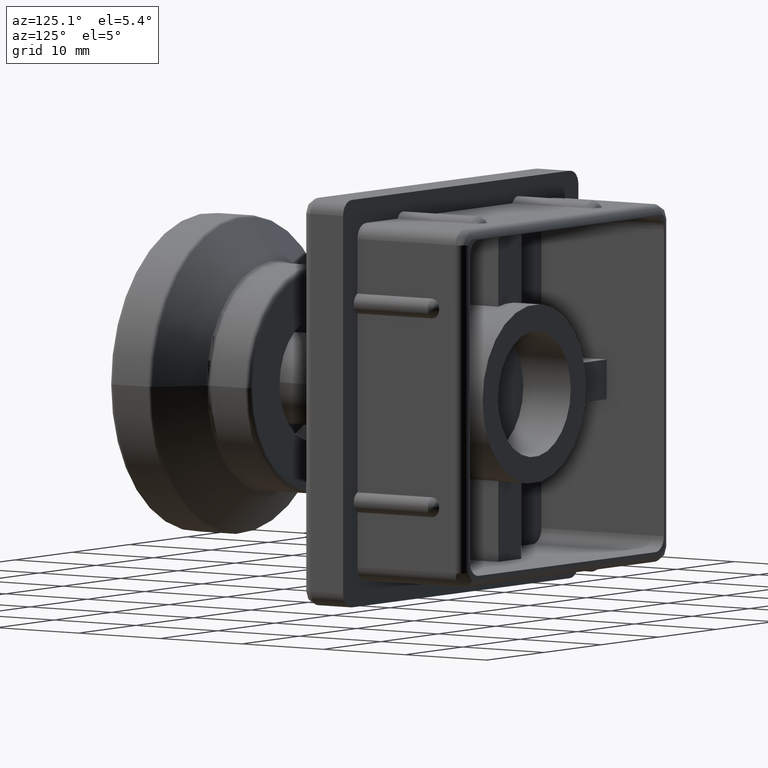
[diagram: clean part render]
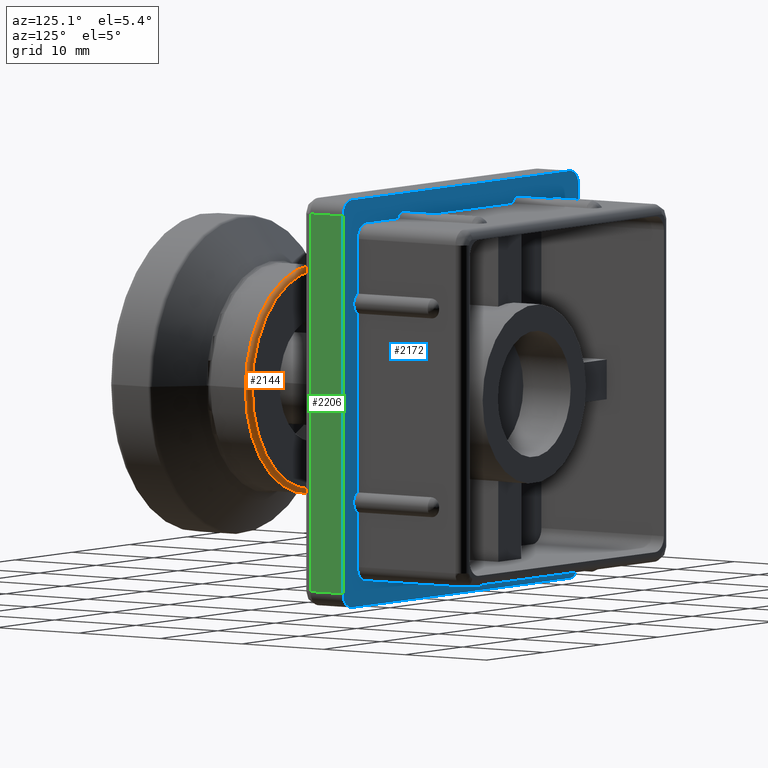
[diagram: same view with three faces highlighted in distinct colors, each labeled with its STEP entity id]
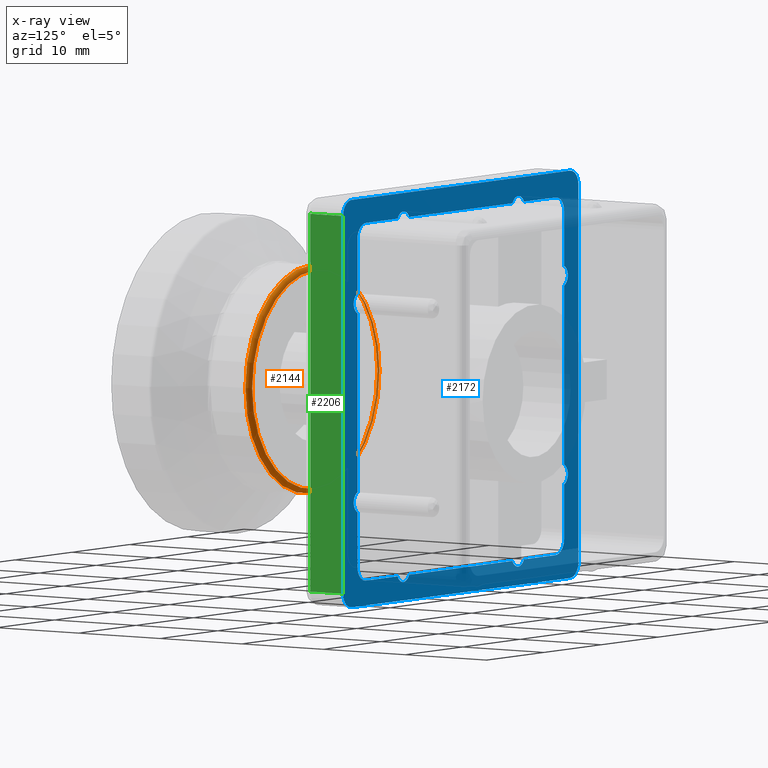
[diagram: x-ray of the same camera — body ghosted, the three highlighted faces saturated]
A machine part, auxiliary view with three faces highlighted in distinct colors.
The next image is the same camera in x-ray (body ghosted, the three faces saturated) — at least one of them is partly hidden behind the body in this view.
Their STEP definitions:

[orange] entity #2144 — the highlighted toroidal blend (fillet) surface has major radius 11 mm and minor (blend) radius 0.5 mm.
#54=FACE_BOUND('',#408,.T.);
#92=CIRCLE('',#2296,11.5);
#93=CIRCLE('',#2298,11.);
#184=TOROIDAL_SURFACE('',#2297,11.,0.5);
#269=FACE_OUTER_BOUND('',#407,.T.);
#407=EDGE_LOOP('',(#1541));
#408=EDGE_LOOP('',(#1542));
#959=VERTEX_POINT('',#3399);
#960=VERTEX_POINT('',#3402);
#1194=EDGE_CURVE('',#959,#959,#92,.T.);
#1195=EDGE_CURVE('',#960,#960,#93,.T.);
#1541=ORIENTED_EDGE('',*,*,#1195,.T.);
#1542=ORIENTED_EDGE('',*,*,#1194,.T.);
#2144=ADVANCED_FACE('',(#269,#54),#184,.T.);
#2296=AXIS2_PLACEMENT_3D('',#3400,#2611,#2612);
#2297=AXIS2_PLACEMENT_3D('',#3401,#2613,#2614);
#2298=AXIS2_PLACEMENT_3D('',#3403,#2615,#2616);
#2611=DIRECTION('center_axis',(-6.34413156928661E-17,1.,0.));
#2612=DIRECTION('ref_axis',(-1.,-6.63720286460691E-17,1.22464679914735E-16));
#2613=DIRECTION('center_axis',(6.34413156928661E-17,-1.,0.));
#2614=DIRECTION('ref_axis',(0.,0.,-1.));
#2615=DIRECTION('center_axis',(6.34413156928661E-17,-1.,0.));
#2616=DIRECTION('ref_axis',(-1.,-6.34413156928661E-17,1.22464679914735E-16));
#3399=CARTESIAN_POINT('',(11.5,13.5,-2.81668763803891E-15));
#3400=CARTESIAN_POINT('Origin',(-8.56457761853692E-16,13.5,0.));
#3401=CARTESIAN_POINT('Origin',(-8.56457761853692E-16,13.5,0.));
#3402=CARTESIAN_POINT('',(11.,14.,0.));
#3403=CARTESIAN_POINT('Origin',(-8.88178419700125E-16,14.,0.));

[blue] entity #2172 — the highlighted planar face has unit normal (-0, 1, -0).
#61=FACE_BOUND('',#443,.T.);
#108=CIRCLE('',#2332,1.09423076923077);
#109=CIRCLE('',#2334,1.09423076923077);
#110=CIRCLE('',#2336,1.5);
#111=CIRCLE('',#2337,1.5);
#112=CIRCLE('',#2338,1.5);
#113=CIRCLE('',#2339,1.5);
#114=CIRCLE('',#2340,1.5);
#115=CIRCLE('',#2341,1.09423076923077);
#116=CIRCLE('',#2342,1.09423076923077);
#117=CIRCLE('',#2343,1.5);
#118=CIRCLE('',#2344,1.09423076923077);
#119=CIRCLE('',#2345,1.09423076923077);
#120=CIRCLE('',#2346,1.5);
#121=CIRCLE('',#2347,1.09423076923077);
#122=CIRCLE('',#2348,1.09423076923077);
#123=CIRCLE('',#2349,1.5);
#207=PLANE('',#2335);
#297=FACE_OUTER_BOUND('',#442,.T.);
#442=EDGE_LOOP('',(#1658,#1659,#1660,#1661,#1662,#1663,#1664,#1665));
#443=EDGE_LOOP('',(#1666,#1667,#1668,#1669,#1670,#1671,#1672,#1673,#1674,
#1675,#1676,#1677,#1678,#1679,#1680,#1681,#1682,#1683,#1684,#1685,#1686,
#1687,#1688,#1689));
#578=LINE('',#4320,#746);
#579=LINE('',#4324,#747);
#580=LINE('',#4328,#748);
#581=LINE('',#4331,#749);
#582=LINE('',#4333,#750);
#583=LINE('',#4337,#751);
#584=LINE('',#4341,#752);
#585=LINE('',#4345,#753);
#586=LINE('',#4349,#754);
#587=LINE('',#4353,#755);
#588=LINE('',#4357,#756);
#589=LINE('',#4361,#757);
#590=LINE('',#4365,#758);
#591=LINE('',#4369,#759);
#592=LINE('',#4372,#760);
#593=LINE('',#4373,#761);
#746=VECTOR('',#2705,38.);
#747=VECTOR('',#2708,38.);
#748=VECTOR('',#2711,38.);
#749=VECTOR('',#2714,38.);
#750=VECTOR('',#2715,5.5);
#751=VECTOR('',#2718,5.5);
#752=VECTOR('',#2721,18.);
#753=VECTOR('',#2724,5.5);
#754=VECTOR('',#2727,5.5);
#755=VECTOR('',#2730,18.);
#756=VECTOR('',#2733,5.5);
#757=VECTOR('',#2736,5.5);
#758=VECTOR('',#2739,18.);
#759=VECTOR('',#2742,5.5);
#760=VECTOR('',#2745,5.5);
#761=VECTOR('',#2746,18.);
#998=VERTEX_POINT('',#4304);
#999=VERTEX_POINT('',#4306);
#1000=VERTEX_POINT('',#4310);
#1001=VERTEX_POINT('',#4312);
#1002=VERTEX_POINT('',#4316);
#1003=VERTEX_POINT('',#4317);
#1004=VERTEX_POINT('',#4319);
#1005=VERTEX_POINT('',#4321);
#1006=VERTEX_POINT('',#4323);
#1007=VERTEX_POINT('',#4325);
#1008=VERTEX_POINT('',#4327);
#1009=VERTEX_POINT('',#4329);
#1010=VERTEX_POINT('',#4332);
#1011=VERTEX_POINT('',#4334);
#1012=VERTEX_POINT('',#4336);
#1013=VERTEX_POINT('',#4338);
#1014=VERTEX_POINT('',#4340);
#1015=VERTEX_POINT('',#4342);
#1016=VERTEX_POINT('',#4344);
#1017=VERTEX_POINT('',#4346);
#1018=VERTEX_POINT('',#4348);
#1019=VERTEX_POINT('',#4350);
#1020=VERTEX_POINT('',#4352);
#1021=VERTEX_POINT('',#4354);
#1022=VERTEX_POINT('',#4356);
#1023=VERTEX_POINT('',#4358);
#1024=VERTEX_POINT('',#4360);
#1025=VERTEX_POINT('',#4362);
#1026=VERTEX_POINT('',#4364);
#1027=VERTEX_POINT('',#4366);
#1028=VERTEX_POINT('',#4368);
#1029=VERTEX_POINT('',#4370);
#1243=EDGE_CURVE('',#999,#998,#108,.T.);
#1246=EDGE_CURVE('',#1001,#1000,#109,.T.);
#1248=EDGE_CURVE('',#1002,#1003,#110,.T.);
#1249=EDGE_CURVE('',#1002,#1004,#578,.T.);
#1250=EDGE_CURVE('',#1005,#1004,#111,.T.);
#1251=EDGE_CURVE('',#1005,#1006,#579,.T.);
#1252=EDGE_CURVE('',#1007,#1006,#112,.T.);
#1253=EDGE_CURVE('',#1007,#1008,#580,.T.);
#1254=EDGE_CURVE('',#1009,#1008,#113,.T.);
#1255=EDGE_CURVE('',#1009,#1003,#581,.T.);
#1256=EDGE_CURVE('',#998,#1010,#582,.T.);
#1257=EDGE_CURVE('',#1011,#1010,#114,.F.);
#1258=EDGE_CURVE('',#1011,#1012,#583,.T.);
#1259=EDGE_CURVE('',#1012,#1013,#115,.T.);
#1260=EDGE_CURVE('',#1013,#1014,#584,.T.);
#1261=EDGE_CURVE('',#1014,#1015,#116,.T.);
#1262=EDGE_CURVE('',#1015,#1016,#585,.T.);
#1263=EDGE_CURVE('',#1017,#1016,#117,.F.);
#1264=EDGE_CURVE('',#1017,#1018,#586,.T.);
#1265=EDGE_CURVE('',#1018,#1019,#118,.T.);
#1266=EDGE_CURVE('',#1019,#1020,#587,.T.);
#1267=EDGE_CURVE('',#1020,#1021,#119,.T.);
#1268=EDGE_CURVE('',#1021,#1022,#588,.T.);
#1269=EDGE_CURVE('',#1023,#1022,#120,.F.);
#1270=EDGE_CURVE('',#1023,#1024,#589,.T.);
#1271=EDGE_CURVE('',#1024,#1025,#121,.T.);
#1272=EDGE_CURVE('',#1025,#1026,#590,.T.);
#1273=EDGE_CURVE('',#1026,#1027,#122,.T.);
#1274=EDGE_CURVE('',#1027,#1028,#591,.T.);
#1275=EDGE_CURVE('',#1029,#1028,#123,.F.);
#1276=EDGE_CURVE('',#1029,#1001,#592,.T.);
#1277=EDGE_CURVE('',#1000,#999,#593,.T.);
#1658=ORIENTED_EDGE('',*,*,#1248,.F.);
#1659=ORIENTED_EDGE('',*,*,#1249,.T.);
#1660=ORIENTED_EDGE('',*,*,#1250,.F.);
#1661=ORIENTED_EDGE('',*,*,#1251,.T.);
#1662=ORIENTED_EDGE('',*,*,#1252,.F.);
#1663=ORIENTED_EDGE('',*,*,#1253,.T.);
#1664=ORIENTED_EDGE('',*,*,#1254,.F.);
#1665=ORIENTED_EDGE('',*,*,#1255,.T.);
#1666=ORIENTED_EDGE('',*,*,#1243,.T.);
#1667=ORIENTED_EDGE('',*,*,#1256,.T.);
#1668=ORIENTED_EDGE('',*,*,#1257,.F.);
#1669=ORIENTED_EDGE('',*,*,#1258,.T.);
#1670=ORIENTED_EDGE('',*,*,#1259,.T.);
#1671=ORIENTED_EDGE('',*,*,#1260,.T.);
#1672=ORIENTED_EDGE('',*,*,#1261,.T.);
#1673=ORIENTED_EDGE('',*,*,#1262,.T.);
#1674=ORIENTED_EDGE('',*,*,#1263,.F.);
#1675=ORIENTED_EDGE('',*,*,#1264,.T.);
#1676=ORIENTED_EDGE('',*,*,#1265,.T.);
#1677=ORIENTED_EDGE('',*,*,#1266,.T.);
#1678=ORIENTED_EDGE('',*,*,#1267,.T.);
#1679=ORIENTED_EDGE('',*,*,#1268,.T.);
#1680=ORIENTED_EDGE('',*,*,#1269,.F.);
#1681=ORIENTED_EDGE('',*,*,#1270,.T.);
#1682=ORIENTED_EDGE('',*,*,#1271,.T.);
#1683=ORIENTED_EDGE('',*,*,#1272,.T.);
#1684=ORIENTED_EDGE('',*,*,#1273,.T.);
#1685=ORIENTED_EDGE('',*,*,#1274,.T.);
#1686=ORIENTED_EDGE('',*,*,#1275,.F.);
#1687=ORIENTED_EDGE('',*,*,#1276,.T.);
#1688=ORIENTED_EDGE('',*,*,#1246,.T.);
#1689=ORIENTED_EDGE('',*,*,#1277,.T.);
#2172=ADVANCED_FACE('',(#297,#61),#207,.T.);
#2332=AXIS2_PLACEMENT_3D('',#4307,#2692,#2693);
#2334=AXIS2_PLACEMENT_3D('',#4313,#2698,#2699);
#2335=AXIS2_PLACEMENT_3D('',#4315,#2701,#2702);
#2336=AXIS2_PLACEMENT_3D('',#4318,#2703,#2704);
#2337=AXIS2_PLACEMENT_3D('',#4322,#2706,#2707);
#2338=AXIS2_PLACEMENT_3D('',#4326,#2709,#2710);
#2339=AXIS2_PLACEMENT_3D('',#4330,#2712,#2713);
#2340=AXIS2_PLACEMENT_3D('',#4335,#2716,#2717);
#2341=AXIS2_PLACEMENT_3D('',#4339,#2719,#2720);
#2342=AXIS2_PLACEMENT_3D('',#4343,#2722,#2723);
#2343=AXIS2_PLACEMENT_3D('',#4347,#2725,#2726);
#2344=AXIS2_PLACEMENT_3D('',#4351,#2728,#2729);
#2345=AXIS2_PLACEMENT_3D('',#4355,#2731,#2732);
#2346=AXIS2_PLACEMENT_3D('',#4359,#2734,#2735);
#2347=AXIS2_PLACEMENT_3D('',#4363,#2737,#2738);
#2348=AXIS2_PLACEMENT_3D('',#4367,#2740,#2741);
#2349=AXIS2_PLACEMENT_3D('',#4371,#2743,#2744);
#2692=DIRECTION('center_axis',(0.,-1.,0.));
#2693=DIRECTION('ref_axis',(-0.913884007029877,0.,-0.40597539543058));
#2698=DIRECTION('center_axis',(0.,-1.,0.));
#2699=DIRECTION('ref_axis',(-0.913884007029877,0.,-0.405975395430579));
#2701=DIRECTION('center_axis',(0.,1.,0.));
#2702=DIRECTION('ref_axis',(0.,0.,1.));
#2703=DIRECTION('center_axis',(0.,-1.,0.));
#2704=DIRECTION('ref_axis',(0.707106781186547,0.,-0.707106781186547));
#2705=DIRECTION('',(-1.,0.,2.16628882853689E-16));
#2706=DIRECTION('center_axis',(0.,-1.,0.));
#2707=DIRECTION('ref_axis',(-0.707106781186547,0.,-0.707106781186547));
#2708=DIRECTION('',(-1.08314441426845E-16,0.,1.));
#2709=DIRECTION('center_axis',(0.,-1.,0.));
#2710=DIRECTION('ref_axis',(-0.707106781186547,0.,0.707106781186547));
#2711=DIRECTION('',(1.,0.,1.08314441426844E-16));
#2712=DIRECTION('center_axis',(0.,-1.,0.));
#2713=DIRECTION('ref_axis',(0.707106781186547,0.,0.707106781186547));
#2714=DIRECTION('',(-1.08314441426845E-16,0.,-1.));
#2715=DIRECTION('',(1.,0.,0.));
#2716=DIRECTION('center_axis',(0.,-1.,0.));
#2717=DIRECTION('ref_axis',(0.707106781186548,0.,-0.707106781186548));
#2718=DIRECTION('',(0.,0.,1.));
#2719=DIRECTION('center_axis',(0.,-1.,0.));
#2720=DIRECTION('ref_axis',(0.40597539543058,0.,0.913884007029877));
#2721=DIRECTION('',(0.,0.,1.));
#2722=DIRECTION('center_axis',(0.,-1.,0.));
#2723=DIRECTION('ref_axis',(-0.405975395430581,0.,-0.913884007029876));
#2724=DIRECTION('',(0.,0.,1.));
#2725=DIRECTION('center_axis',(0.,-1.,0.));
#2726=DIRECTION('ref_axis',(0.707106781186548,0.,0.707106781186548));
#2727=DIRECTION('',(-1.,0.,0.));
#2728=DIRECTION('center_axis',(0.,-1.,0.));
#2729=DIRECTION('ref_axis',(-0.913884007029877,0.,0.40597539543058));
#2730=DIRECTION('',(-1.,0.,0.));
#2731=DIRECTION('center_axis',(0.,-1.,0.));
#2732=DIRECTION('ref_axis',(-0.913884007029877,0.,0.405975395430579));
#2733=DIRECTION('',(-1.,0.,0.));
#2734=DIRECTION('center_axis',(0.,-1.,0.));
#2735=DIRECTION('ref_axis',(-0.707106781186548,0.,0.707106781186548));
#2736=DIRECTION('',(0.,0.,-1.));
#2737=DIRECTION('center_axis',(0.,-1.,0.));
#2738=DIRECTION('ref_axis',(0.405975395430581,0.,-0.913884007029876));
#2739=DIRECTION('',(0.,0.,-1.));
#2740=DIRECTION('center_axis',(0.,-1.,0.));
#2741=DIRECTION('ref_axis',(-0.40597539543058,0.,0.913884007029877));
#2742=DIRECTION('',(0.,0.,-1.));
#2743=DIRECTION('center_axis',(0.,-1.,0.));
#2744=DIRECTION('ref_axis',(-0.707106781186548,0.,-0.707106781186548));
#2745=DIRECTION('',(1.,0.,0.));
#2746=DIRECTION('',(1.,0.,0.));
#4304=CARTESIAN_POINT('',(11.,0.,-18.));
#4306=CARTESIAN_POINT('',(9.,0.,-18.));
#4307=CARTESIAN_POINT('Origin',(10.,0.,-17.5557692307692));
#4310=CARTESIAN_POINT('',(-9.,0.,-18.));
#4312=CARTESIAN_POINT('',(-11.,0.,-18.));
#4313=CARTESIAN_POINT('Origin',(-10.,0.,-17.5557692307692));
#4315=CARTESIAN_POINT('Origin',(8.12358310701334E-16,0.,1.92258133532649E-15));
#4316=CARTESIAN_POINT('',(19.,0.,-20.5));
#4317=CARTESIAN_POINT('',(20.5,0.,-19.));
#4318=CARTESIAN_POINT('Origin',(19.,0.,-19.));
#4319=CARTESIAN_POINT('',(-19.,0.,-20.5));
#4320=CARTESIAN_POINT('',(20.5,0.,-20.5));
#4321=CARTESIAN_POINT('',(-20.5,0.,-19.));
#4322=CARTESIAN_POINT('Origin',(-19.,0.,-19.));
#4323=CARTESIAN_POINT('',(-20.5,0.,19.));
#4324=CARTESIAN_POINT('',(-20.5,0.,-20.5));
#4325=CARTESIAN_POINT('',(-19.,0.,20.5));
#4326=CARTESIAN_POINT('Origin',(-19.,0.,19.));
#4327=CARTESIAN_POINT('',(19.,0.,20.5));
#4328=CARTESIAN_POINT('',(-20.5,0.,20.5));
#4329=CARTESIAN_POINT('',(20.5,0.,19.));
#4330=CARTESIAN_POINT('Origin',(19.,0.,19.));
#4331=CARTESIAN_POINT('',(20.5,0.,20.5));
#4332=CARTESIAN_POINT('',(16.5,0.,-18.));
#4333=CARTESIAN_POINT('',(-18.,0.,-18.));
#4334=CARTESIAN_POINT('',(18.,0.,-16.5));
#4335=CARTESIAN_POINT('Origin',(16.5,0.,-16.5));
#4336=CARTESIAN_POINT('',(18.,0.,-11.));
#4337=CARTESIAN_POINT('',(18.,0.,-18.));
#4338=CARTESIAN_POINT('',(18.,0.,-9.));
#4339=CARTESIAN_POINT('Origin',(17.5557692307692,0.,-10.));
#4340=CARTESIAN_POINT('',(18.,0.,9.));
#4341=CARTESIAN_POINT('',(18.,0.,-18.));
#4342=CARTESIAN_POINT('',(18.,0.,11.));
#4343=CARTESIAN_POINT('Origin',(17.5557692307692,0.,10.));
#4344=CARTESIAN_POINT('',(18.,0.,16.5));
#4345=CARTESIAN_POINT('',(18.,0.,-18.));
#4346=CARTESIAN_POINT('',(16.5,0.,18.));
#4347=CARTESIAN_POINT('Origin',(16.5,0.,16.5));
#4348=CARTESIAN_POINT('',(11.,0.,18.));
#4349=CARTESIAN_POINT('',(18.,0.,18.));
#4350=CARTESIAN_POINT('',(9.,0.,18.));
#4351=CARTESIAN_POINT('Origin',(10.,0.,17.5557692307692));
#4352=CARTESIAN_POINT('',(-9.,0.,18.));
#4353=CARTESIAN_POINT('',(18.,0.,18.));
#4354=CARTESIAN_POINT('',(-11.,0.,18.));
#4355=CARTESIAN_POINT('Origin',(-10.,0.,17.5557692307692));
#4356=CARTESIAN_POINT('',(-16.5,0.,18.));
#4357=CARTESIAN_POINT('',(18.,0.,18.));
#4358=CARTESIAN_POINT('',(-18.,0.,16.5));
#4359=CARTESIAN_POINT('Origin',(-16.5,0.,16.5));
#4360=CARTESIAN_POINT('',(-18.,0.,11.));
#4361=CARTESIAN_POINT('',(-18.,0.,18.));
#4362=CARTESIAN_POINT('',(-18.,0.,9.));
#4363=CARTESIAN_POINT('Origin',(-17.5557692307692,0.,10.));
#4364=CARTESIAN_POINT('',(-18.,0.,-9.));
#4365=CARTESIAN_POINT('',(-18.,0.,18.));
#4366=CARTESIAN_POINT('',(-18.,0.,-11.));
#4367=CARTESIAN_POINT('Origin',(-17.5557692307692,0.,-10.));
#4368=CARTESIAN_POINT('',(-18.,0.,-16.5));
#4369=CARTESIAN_POINT('',(-18.,0.,18.));
#4370=CARTESIAN_POINT('',(-16.5,0.,-18.));
#4371=CARTESIAN_POINT('Origin',(-16.5,0.,-16.5));
#4372=CARTESIAN_POINT('',(-18.,0.,-18.));
#4373=CARTESIAN_POINT('',(-18.,0.,-18.));

[green] entity #2206 — the highlighted planar face has unit normal (1, -0, -0).
#224=PLANE('',#2411);
#331=FACE_OUTER_BOUND('',#480,.T.);
#480=EDGE_LOOP('',(#1839,#1840,#1841,#1842));
#581=LINE('',#4331,#749);
#654=LINE('',#4576,#822);
#658=LINE('',#4596,#826);
#659=LINE('',#4597,#827);
#749=VECTOR('',#2714,38.);
#822=VECTOR('',#2921,38.);
#826=VECTOR('',#2935,4.);
#827=VECTOR('',#2936,4.);
#1003=VERTEX_POINT('',#4317);
#1009=VERTEX_POINT('',#4329);
#1085=VERTEX_POINT('',#4568);
#1087=VERTEX_POINT('',#4574);
#1255=EDGE_CURVE('',#1009,#1003,#581,.T.);
#1367=EDGE_CURVE('',#1087,#1085,#654,.T.);
#1374=EDGE_CURVE('',#1003,#1087,#658,.T.);
#1375=EDGE_CURVE('',#1085,#1009,#659,.T.);
#1839=ORIENTED_EDGE('',*,*,#1367,.F.);
#1840=ORIENTED_EDGE('',*,*,#1374,.F.);
#1841=ORIENTED_EDGE('',*,*,#1255,.F.);
#1842=ORIENTED_EDGE('',*,*,#1375,.F.);
#2206=ADVANCED_FACE('',(#331),#224,.T.);
#2411=AXIS2_PLACEMENT_3D('',#4595,#2933,#2934);
#2714=DIRECTION('',(-1.08314441426845E-16,0.,-1.));
#2921=DIRECTION('',(1.08314441426845E-16,0.,1.));
#2933=DIRECTION('center_axis',(1.,0.,-1.08314441426845E-16));
#2934=DIRECTION('ref_axis',(0.,0.,1.));
#2935=DIRECTION('',(0.,-1.,0.));
#2936=DIRECTION('',(0.,1.,0.));
#4317=CARTESIAN_POINT('',(20.5,0.,-19.));
#4329=CARTESIAN_POINT('',(20.5,0.,19.));
#4331=CARTESIAN_POINT('',(20.5,0.,20.5));
#4568=CARTESIAN_POINT('',(20.5,-4.,19.));
#4574=CARTESIAN_POINT('',(20.5,-4.,-19.));
#4576=CARTESIAN_POINT('',(20.5,-4.,-10.25));
#4595=CARTESIAN_POINT('Origin',(20.5,0.,-20.5));
#4596=CARTESIAN_POINT('',(20.5,0.,-19.));
#4597=CARTESIAN_POINT('',(20.5,0.,19.));